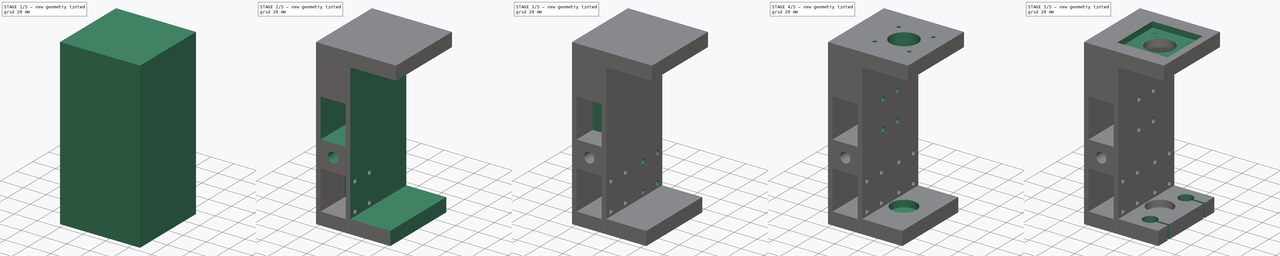
[diagram: build sequence overview — one tinted view per stage of 5, left to right]
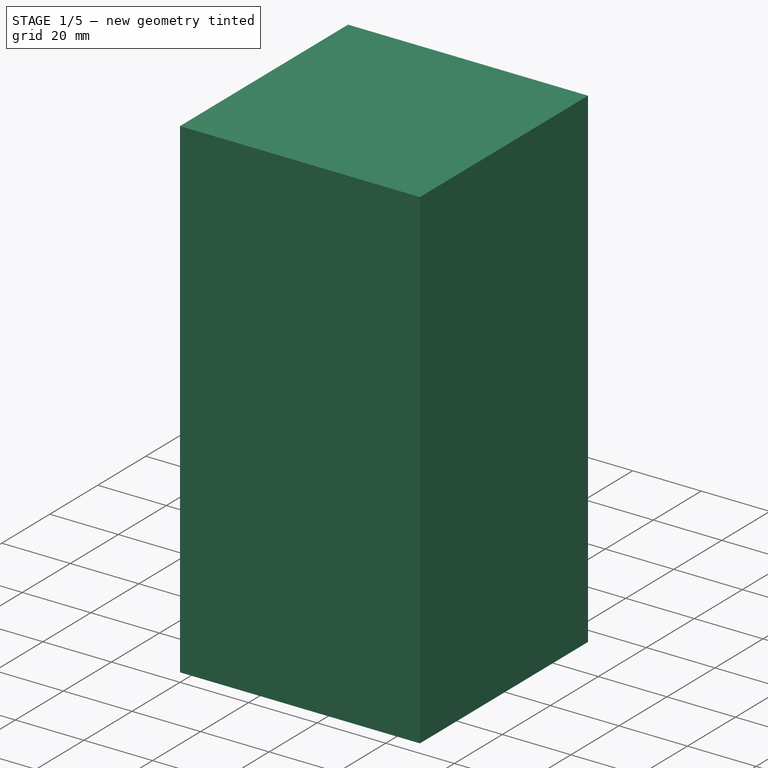
[diagram: stage 1 of 5 — iso view after this stage's code; geometry added in this stage tinted green]
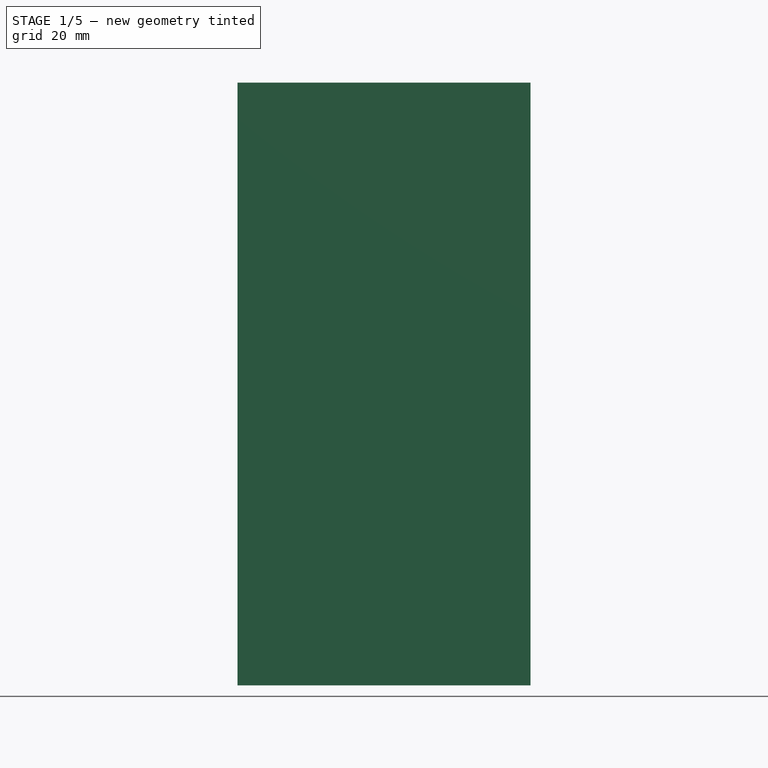
[diagram: stage 1 of 5 — front view after this stage's code; geometry added in this stage tinted green]
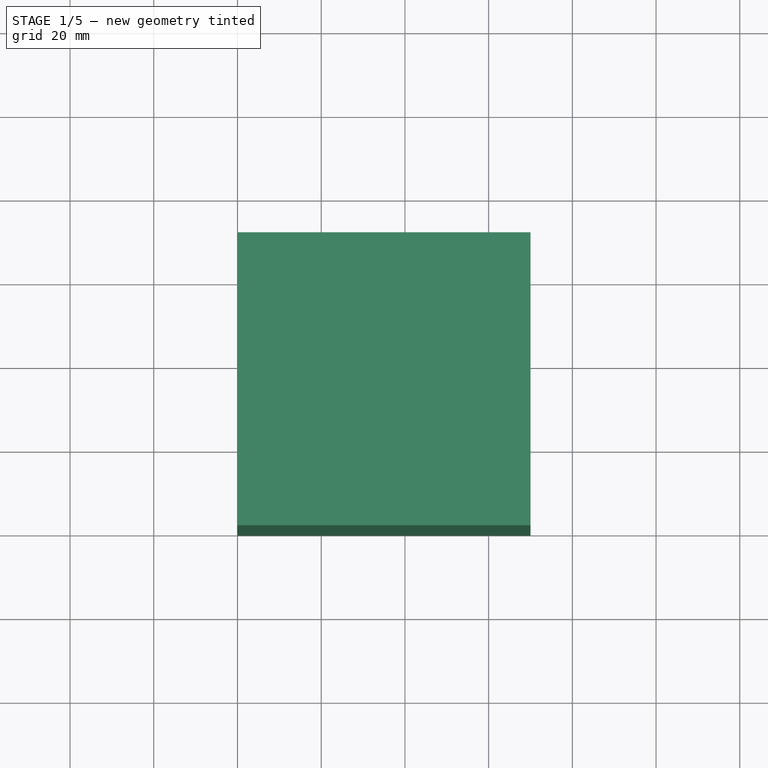
[diagram: stage 1 of 5 — top view after this stage's code; geometry added in this stage tinted green]
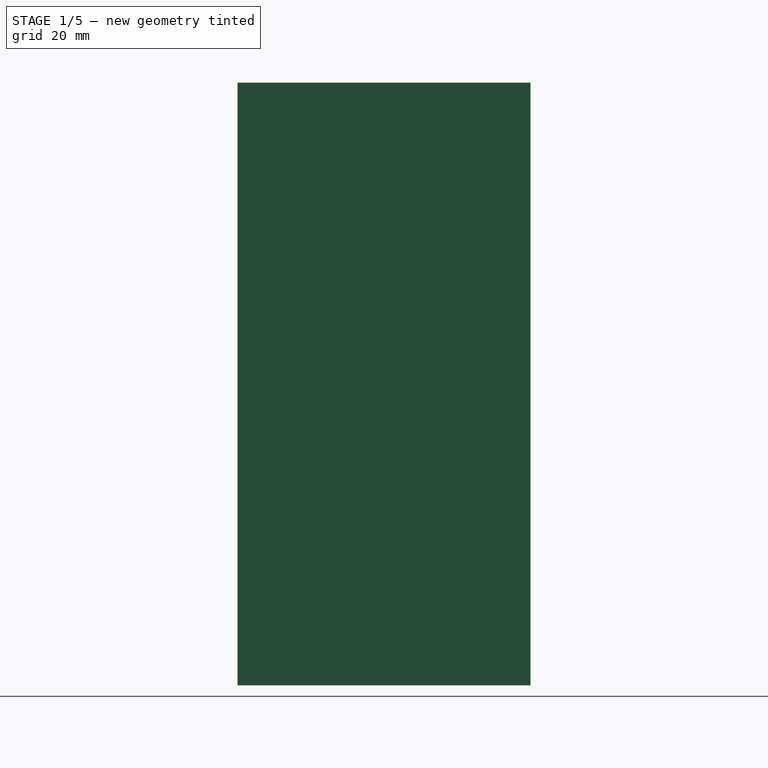
[diagram: stage 1 of 5 — right view after this stage's code; geometry added in this stage tinted green]
FCSTD DOCUMENT  (FreeCAD 0.16R6712 (Git))
Label: c_V1
License: All rights reserved
LicenseURL: http://en.wikipedia.org/wiki/All_rights_reserved
objects: Sketcher::SketchObject×10, PartDesign::Pocket×7, Part::Box×4, PartDesign::Pad×3, Part::Cut×3
note: 37 computed .brp shape members not serialized (recipe doc carries the construction recipe); baked Part::Feature solids carry a one-line shape summary decoded from their .brp

FEATURE [Part::Box] Box  label="Cubo"
  Height = 144
  Length = 70
  Width = 70
FEATURE [Part::Box] Box001  label="hueco_rodamientos_inferior"
  Height = 34
  Length = 22
  Placement = pos=(4,0,11) rot=(0,0,1;0rad)
  Width = 30
FEATURE [Sketcher::SketchObject] Sketch002
  ExternalGeometry = -> [Box001]
  Placement = pos=(26,0,11) rot=(0.57735,0.57735,0.57735;2.0944rad)
  Support = -> Box001 [Face2]
  sketch-geometry (4):
    g0: Circle CenterX=6 CenterY=29 CenterZ=0 NormalX=0 NormalY=0 NormalZ=1 Radius=2
    g1: Circle CenterX=6 CenterY=5 CenterZ=0 NormalX=0 NormalY=0 NormalZ=1 Radius=2
    g2: Circle CenterX=24 CenterY=29 CenterZ=0 NormalX=0 NormalY=0 NormalZ=1 Radius=2
    g3: Circle CenterX=24 CenterY=5 CenterZ=0 NormalX=0 NormalY=0 NormalZ=1 Radius=2
  constraints (12):
    c: DistanceY(g1,g0) = 24
    c: DistanceY(g3,g2) = 24
    c: DistanceX(g0,g2) = 18
    c: Radius(g0) = 2
    c: Equal(g0,g2)
    c: Equal(g2,g3)
    c: Equal(g3,g1)
    c: DistanceX(g1,g0) = 0
    c: DistanceX(g2,g3) = 0
    c: DistanceY(g0,g2) = 0
    c: DistanceX(g-1,g1) = 6
    c: DistanceY(g-1,g1) = 5
FEATURE [PartDesign::Pad] Pad  label="rodamiento1"
  Length = 10
  Length2 = 100
  Placement = pos=(4,0,11) rot=(0,0,1;0rad)
  Sketch = -> Sketch002
  Type = 0
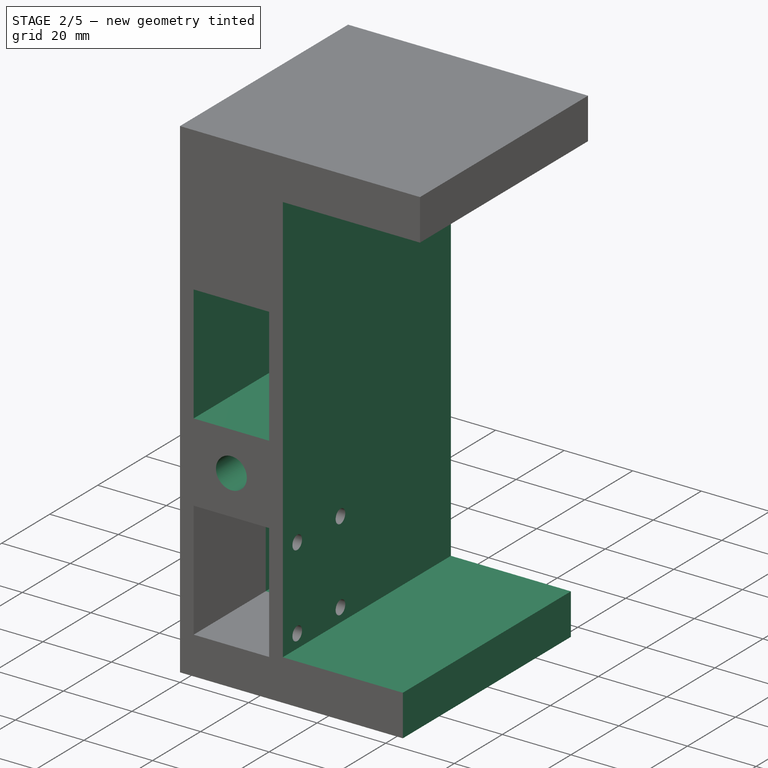
[diagram: stage 2 of 5 — iso view after this stage's code; geometry added in this stage tinted green]
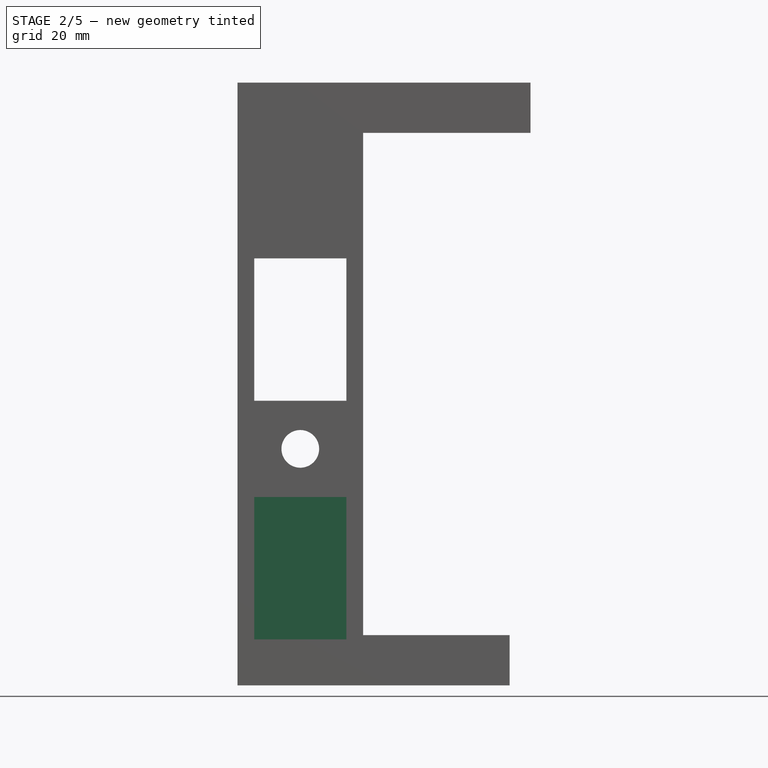
[diagram: stage 2 of 5 — front view after this stage's code; geometry added in this stage tinted green]
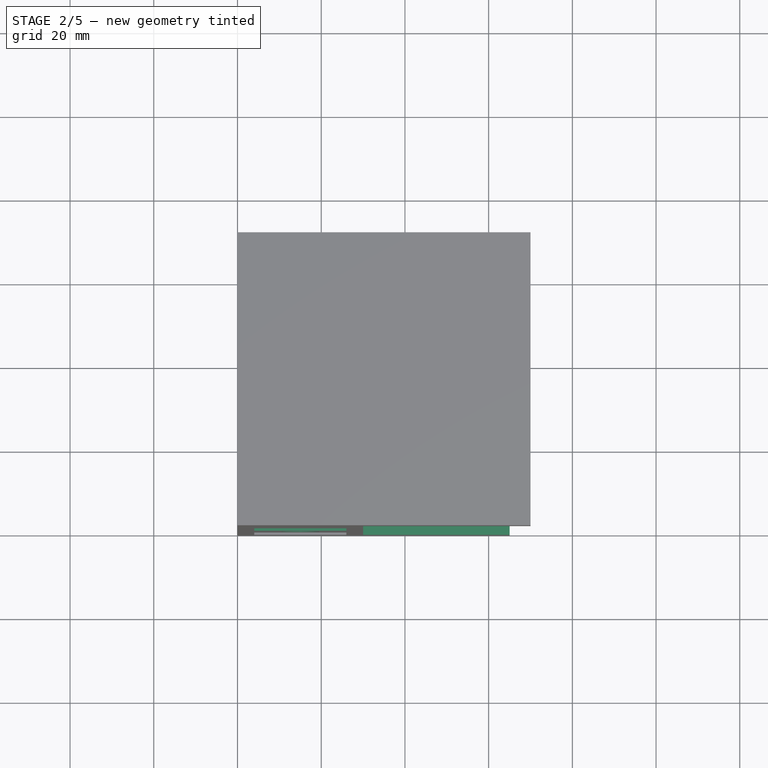
[diagram: stage 2 of 5 — top view after this stage's code; geometry added in this stage tinted green]
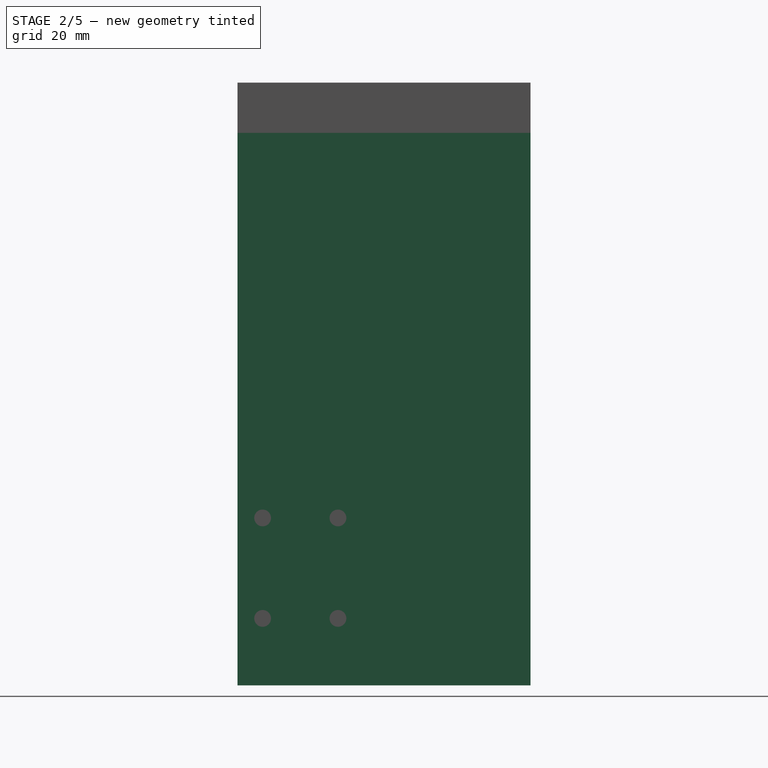
[diagram: stage 2 of 5 — right view after this stage's code; geometry added in this stage tinted green]
FEATURE [Sketcher::SketchObject] Sketch
  ExternalGeometry = -> [Box]
  Placement = pos=(0,0,0) rot=(1,0,0;1.5708rad)
  Support = -> Box [Face3]
  sketch-geometry (6):
    g0: LineSegment StartX=30 StartY=132 StartZ=0 EndX=72 EndY=132 EndZ=0
    g1: LineSegment StartX=72 StartY=132 StartZ=0 EndX=72 EndY=-8 EndZ=0
    g2: LineSegment StartX=65 StartY=12 StartZ=0 EndX=30 EndY=12 EndZ=0
    g3: LineSegment StartX=30 StartY=12 StartZ=0 EndX=30 EndY=132 EndZ=0
    g4: LineSegment StartX=65 StartY=12 StartZ=0 EndX=65 EndY=-8 EndZ=0
    g5: LineSegment StartX=65 StartY=-8 StartZ=0 EndX=72 EndY=-8 EndZ=0
  constraints (18):
    c: Coincident(g0,g1)
    c: Coincident(g2,g3)
    c: Coincident(g3,g0)
    c: Horizontal(g0)
    c: Horizontal(g2)
    c: Vertical(g1)
    c: Vertical(g3)
    c: DistanceY(g-1,g2) = 12
    c: DistanceY(g0,g-3) = 12
    c: DistanceX(g-1,g2) = 30
    c: Coincident(g4,g5)
    c: Horizontal(g5)
    c: Vertical(g4)
    c: Coincident(g2,g4)
    c: DistanceX(g2,g2) = 35
    c: DistanceX(g0,g0) = 42
    c: DistanceY(g4,g4) = 20
    c: Coincident(g1,g5)
FEATURE [PartDesign::Pocket] Pocket
  Length = 5
  Sketch = -> Sketch
  Type = 1
FEATURE [Sketcher::SketchObject] Sketch001
  ExternalGeometry = -> [Pocket]
  Placement = pos=(0,0,0) rot=(1,0,0;1.5708rad)
  Support = -> Pocket [Face2]
  sketch-geometry (11):
    g0: Circle CenterX=15 CenterY=28 CenterZ=0 NormalX=0 NormalY=0 NormalZ=1 Radius=4.1
    g1: Circle CenterX=15 CenterY=85 CenterZ=0 NormalX=0 NormalY=0 NormalZ=1 Radius=4.1
    g2: Circle CenterX=15 CenterY=56.5 CenterZ=0 NormalX=0 NormalY=0 NormalZ=1 Radius=4.5
    g3: LineSegment StartX=4 StartY=102 StartZ=0 EndX=26 EndY=102 EndZ=0
    g4: LineSegment StartX=26 StartY=102 StartZ=0 EndX=26 EndY=68 EndZ=0
    g5: LineSegment StartX=26 StartY=68 StartZ=0 EndX=4 EndY=68 EndZ=0
    g6: LineSegment StartX=4 StartY=68 StartZ=0 EndX=4 EndY=102 EndZ=0
    g7: LineSegment StartX=4 StartY=45 StartZ=0 EndX=26 EndY=45 EndZ=0
    g8: LineSegment StartX=26 StartY=45 StartZ=0 EndX=26 EndY=11 EndZ=0
    g9: LineSegment StartX=26 StartY=11 StartZ=0 EndX=4 EndY=11 EndZ=0
    g10: LineSegment StartX=4 StartY=11 StartZ=0 EndX=4 EndY=45 EndZ=0
  constraints (33):
    c: DistanceX(g0,g-3) = 15
    c: DistanceY(g-3,g0) = 16
    c: Radius(g0) = 4.1
    c: Radius(g1) = 4.1
    c: Radius(g2) = 4.5
    c: DistanceY(g0,g2) = 28.5
    c: DistanceX(g2,g0) = 0
    c: DistanceY(g2,g1) = 28.5
    c: DistanceX(g1,g0) = 0
    c: Coincident(g3,g4)
    c: Coincident(g4,g5)
    c: Coincident(g5,g6)
    c: Coincident(g6,g3)
    c: Horizontal(g3)
    c: Horizontal(g5)
    c: Vertical(g4)
    c: Vertical(g6)
    c: Coincident(g7,g8)
    c: Coincident(g8,g9)
    c: Coincident(g9,g10)
    c: Coincident(g10,g7)
    c: Horizontal(g7)
    c: Horizontal(g9)
    c: Vertical(g8)
    c: Vertical(g10)
    c: DistanceX(g3,g3) = 22
    c: DistanceY(g4,g4) = 34
    c: DistanceY(g1,g3) = 17
    c: DistanceX(g3,g1) = 11
    c: DistanceX(g7,g7) = 22
    c: DistanceY(g8,g8) = 34
    c: DistanceX(g7,g0) = 11
    c: DistanceY(g0,g7) = 17
FEATURE [PartDesign::Pocket] Pocket001
  Length = 5
  Sketch = -> Sketch001
  Type = 1
FEATURE [Part::Box] Box003  label="hueco_rodamientos_inferior001"
  Height = 34
  Length = 22
  Placement = pos=(4,40,11) rot=(0,0,1;0rad)
  Width = 30
FEATURE [Part::Cut] Cut
  Base = -> Pocket001
  Tool = -> Pad
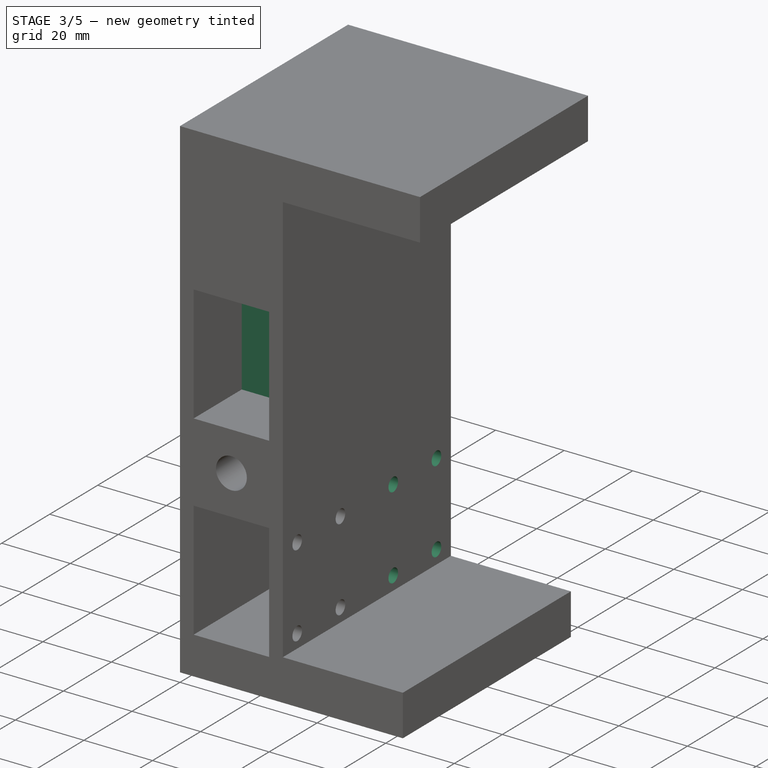
[diagram: stage 3 of 5 — iso view after this stage's code; geometry added in this stage tinted green]
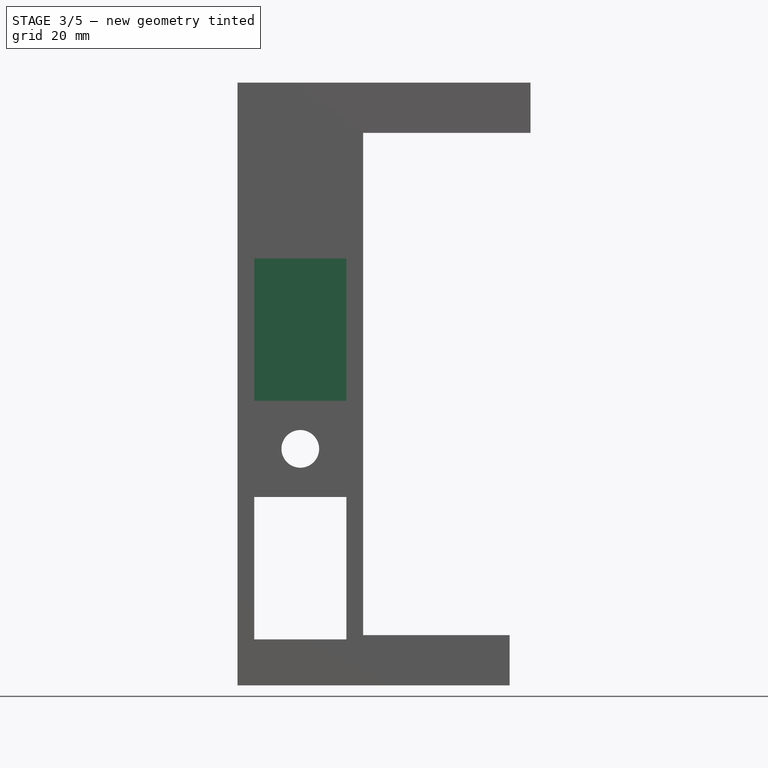
[diagram: stage 3 of 5 — front view after this stage's code; geometry added in this stage tinted green]
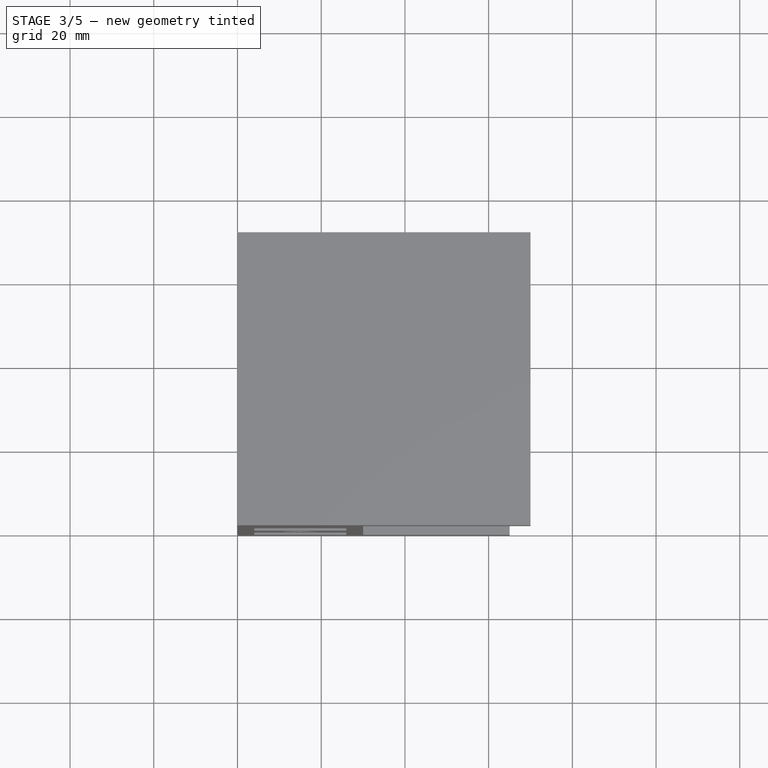
[diagram: stage 3 of 5 — top view after this stage's code; geometry added in this stage tinted green]
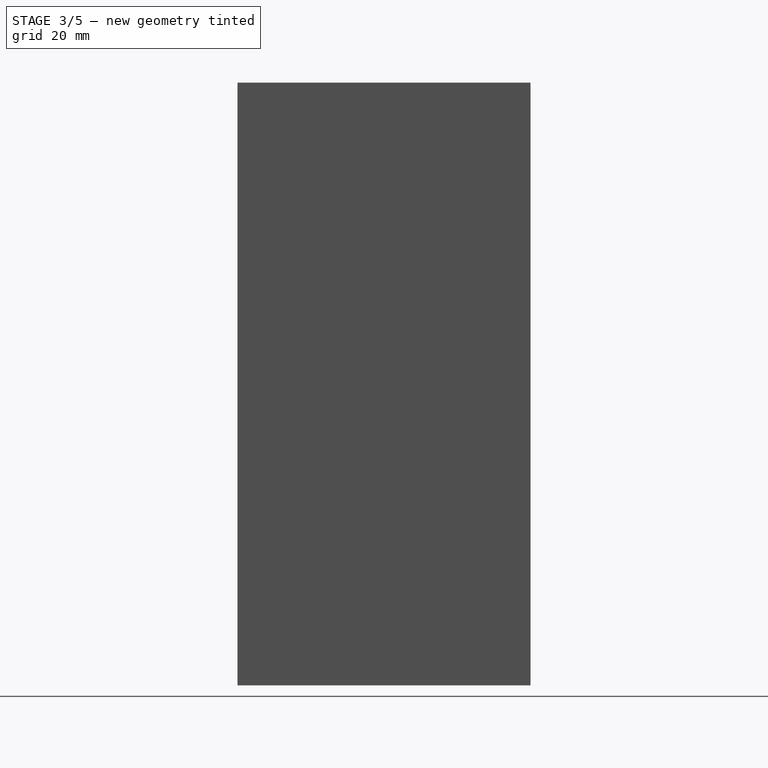
[diagram: stage 3 of 5 — right view after this stage's code; geometry added in this stage tinted green]
FEATURE [Sketcher::SketchObject] Sketch003
  ExternalGeometry = -> [Box003]
  Placement = pos=(26,40,11) rot=(0.57735,0.57735,0.57735;2.0944rad)
  Support = -> Box003 [Face2]
  sketch-geometry (4):
    g0: Circle CenterX=6 CenterY=29 CenterZ=0 NormalX=0 NormalY=0 NormalZ=1 Radius=2
    g1: Circle CenterX=6 CenterY=5 CenterZ=0 NormalX=0 NormalY=0 NormalZ=1 Radius=2
    g2: Circle CenterX=24 CenterY=29 CenterZ=0 NormalX=0 NormalY=0 NormalZ=1 Radius=2
    g3: Circle CenterX=24 CenterY=5 CenterZ=0 NormalX=0 NormalY=0 NormalZ=1 Radius=2
  constraints (12):
    c: DistanceY(g1,g0) = 24
    c: DistanceY(g3,g2) = 24
    c: DistanceX(g0,g2) = 18
    c: Radius(g0) = 2
    c: Equal(g0,g2)
    c: Equal(g2,g3)
    c: Equal(g3,g1)
    c: DistanceX(g1,g0) = 0
    c: DistanceX(g2,g3) = 0
    c: DistanceY(g0,g2) = 0
    c: DistanceX(g-1,g1) = 6
    c: DistanceY(g-1,g1) = 5
FEATURE [PartDesign::Pad] Pad001  label="rodamiento002"
  Length = 10
  Length2 = 100
  Placement = pos=(4,40,11) rot=(0,0,1;0rad)
  Sketch = -> Sketch003
  Type = 0
FEATURE [Part::Box] Box004  label="hueco_rodamientos_inferior002"
  Height = 34
  Length = 22
  Placement = pos=(4,20,68) rot=(0,0,1;0rad)
  Width = 30
FEATURE [Part::Cut] Cut001
  Base = -> Cut
  Tool = -> Pad001
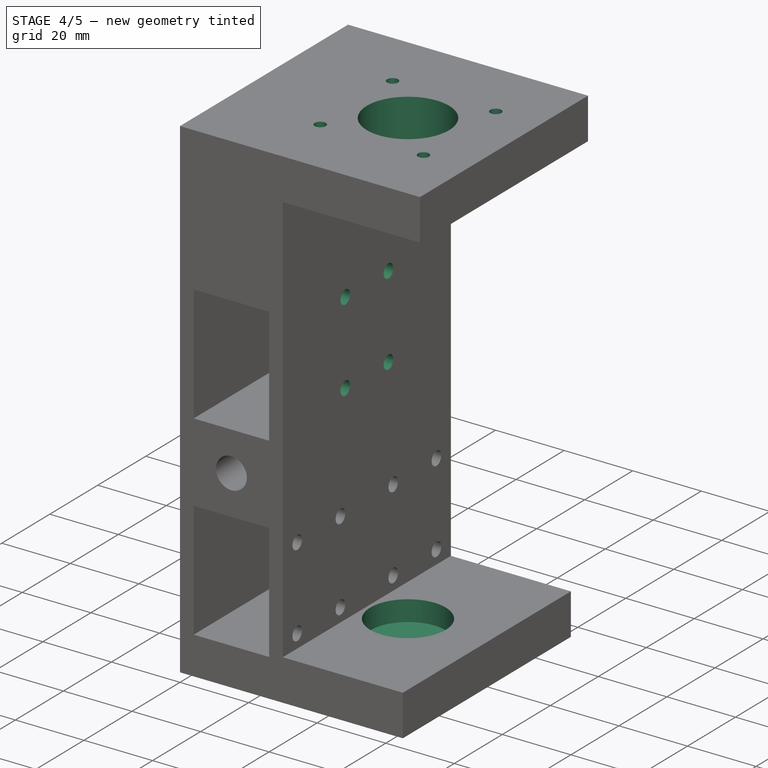
[diagram: stage 4 of 5 — iso view after this stage's code; geometry added in this stage tinted green]
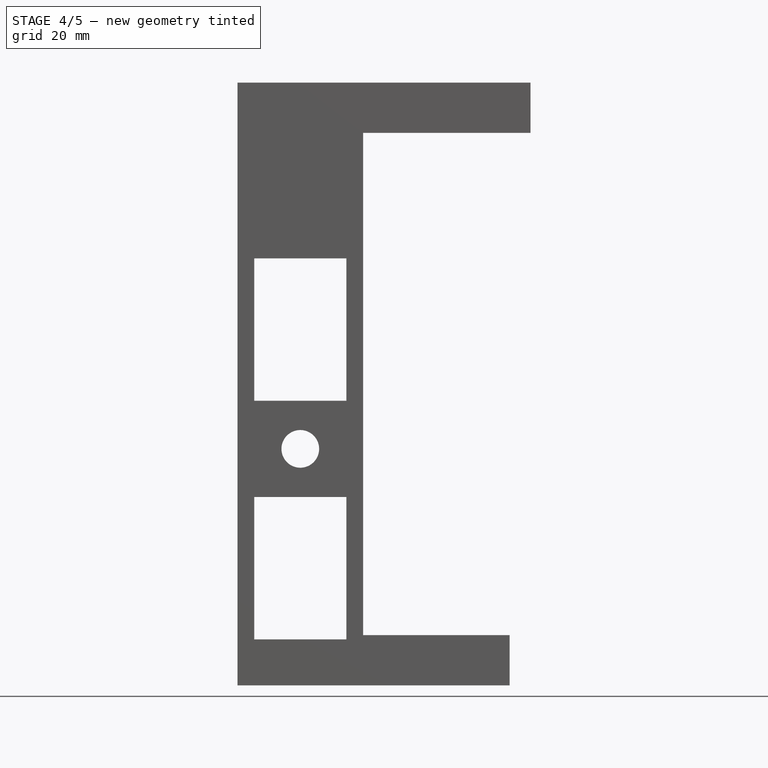
[diagram: stage 4 of 5 — front view after this stage's code; geometry added in this stage tinted green]
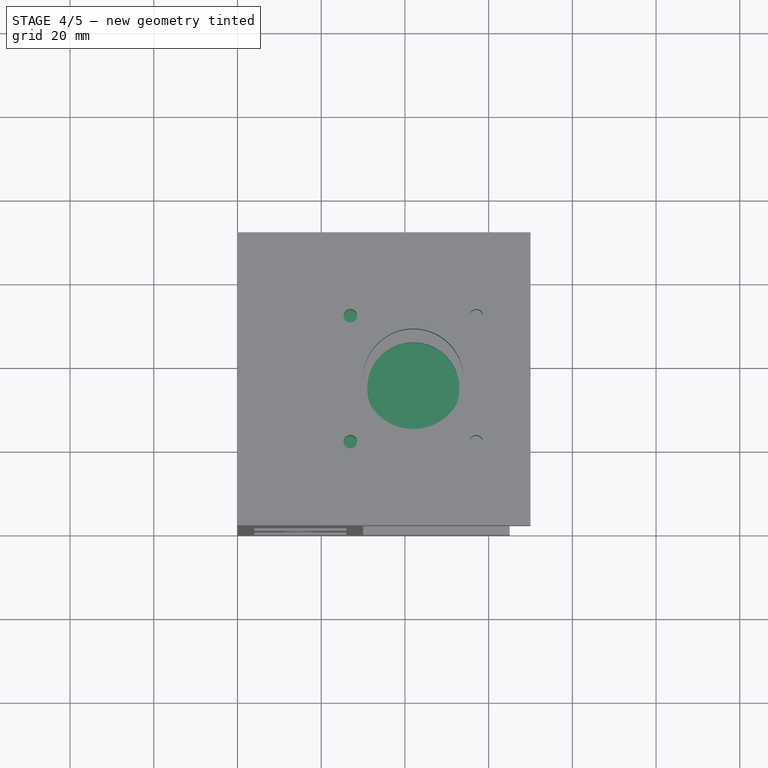
[diagram: stage 4 of 5 — top view after this stage's code; geometry added in this stage tinted green]
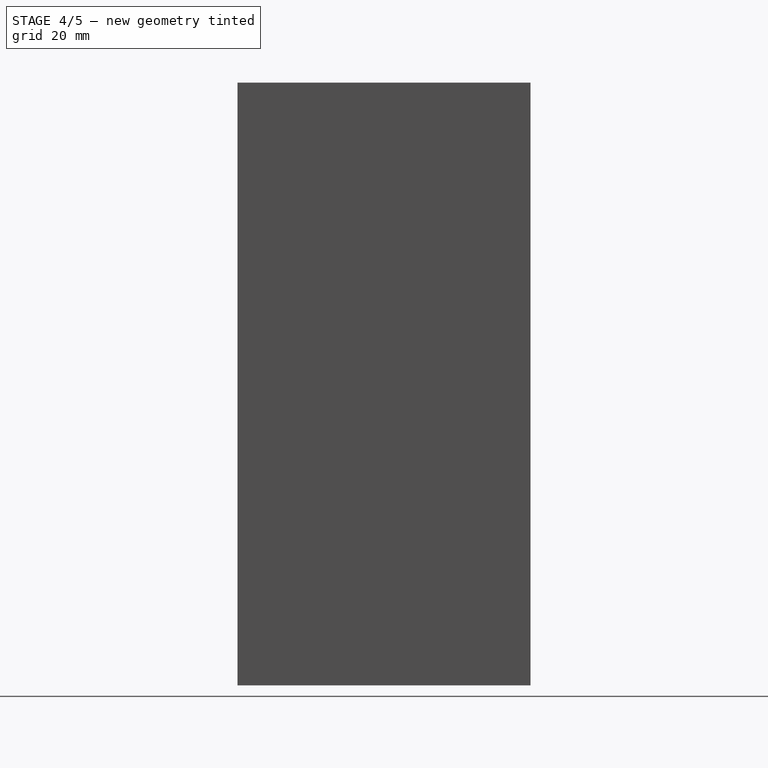
[diagram: stage 4 of 5 — right view after this stage's code; geometry added in this stage tinted green]
FEATURE [Sketcher::SketchObject] Sketch004
  ExternalGeometry = -> [Box004]
  Placement = pos=(26,20,68) rot=(0.57735,0.57735,0.57735;2.0944rad)
  Support = -> Box004 [Face2]
  sketch-geometry (4):
    g0: Circle CenterX=6 CenterY=29 CenterZ=0 NormalX=0 NormalY=0 NormalZ=1 Radius=2
    g1: Circle CenterX=6 CenterY=5 CenterZ=0 NormalX=0 NormalY=0 NormalZ=1 Radius=2
    g2: Circle CenterX=24 CenterY=29 CenterZ=0 NormalX=0 NormalY=0 NormalZ=1 Radius=2
    g3: Circle CenterX=24 CenterY=5 CenterZ=0 NormalX=0 NormalY=0 NormalZ=1 Radius=2
  constraints (12):
    c: DistanceY(g1,g0) = 24
    c: DistanceY(g3,g2) = 24
    c: DistanceX(g0,g2) = 18
    c: Radius(g0) = 2
    c: Equal(g0,g2)
    c: Equal(g2,g3)
    c: Equal(g3,g1)
    c: DistanceX(g1,g0) = 0
    c: DistanceX(g2,g3) = 0
    c: DistanceY(g0,g2) = 0
    c: DistanceX(g-1,g1) = 6
    c: DistanceY(g-1,g1) = 5
FEATURE [PartDesign::Pad] Pad002  label="rodamiento003"
  Length = 10
  Length2 = 100
  Placement = pos=(4,20,68) rot=(0,0,1;0rad)
  Sketch = -> Sketch004
  Type = 0
FEATURE [Part::Cut] Cut002
  Base = -> Cut001
  Tool = -> Pad002
FEATURE [Sketcher::SketchObject] Sketch005
  Placement = pos=(0,0,12) rot=(0,0,1;0rad)
  Support = -> Cut002 [Face7]
  sketch-geometry (1):
    g0: Circle CenterX=42 CenterY=35 CenterZ=0 NormalX=0 NormalY=0 NormalZ=1 Radius=11
  constraints (3):
    c: Radius(g0) = 11
    c: DistanceY(g-1,g0) = 35
    c: DistanceX(g-1,g0) = 42
FEATURE [PartDesign::Pocket] Pocket002
  Length = 6
  Sketch = -> Sketch005
  Type = 0
FEATURE [Sketcher::SketchObject] Sketch006
  Placement = pos=(0,0,144) rot=(0,0,1;0rad)
  Support = -> Pocket002 [Face3]
  sketch-geometry (5):
    g0: Circle CenterX=42 CenterY=35 CenterZ=0 NormalX=0 NormalY=0 NormalZ=1 Radius=12
    g1: Circle CenterX=26.95 CenterY=50.05 CenterZ=0 NormalX=0 NormalY=0 NormalZ=1 Radius=1.6
    g2: Circle CenterX=57.05 CenterY=19.95 CenterZ=0 NormalX=0 NormalY=0 NormalZ=1 Radius=1.6
    g3: Circle CenterX=57.05 CenterY=50.05 CenterZ=0 NormalX=0 NormalY=0 NormalZ=1 Radius=1.6
    g4: Circle CenterX=26.95 CenterY=19.95 CenterZ=0 NormalX=0 NormalY=0 NormalZ=1 Radius=1.6
  constraints (15):
    c: DistanceX(g-1,g0) = 42
    c: DistanceY(g-1,g0) = 35
    c: Radius(g0) = 12
    c: Radius(g1) = 1.6
    c: DistanceX(g1,g0) = 15.05
    c: DistanceY(g0,g1) = 15.05
    c: Radius(g2) = 1.6
    c: Radius(g3) = 1.6
    c: Radius(g4) = 1.6
    c: DistanceY(g4,g0) = 15.05
    c: DistanceX(g4,g0) = 15.05
    c: DistanceX(g0,g2) = 15.05
    c: DistanceY(g2,g0) = 15.05
    c: DistanceX(g0,g3) = 15.05
    c: DistanceY(g0,g3) = 15.05
FEATURE [PartDesign::Pocket] Pocket003
  Length = 12
  Sketch = -> Sketch006
  Type = 0
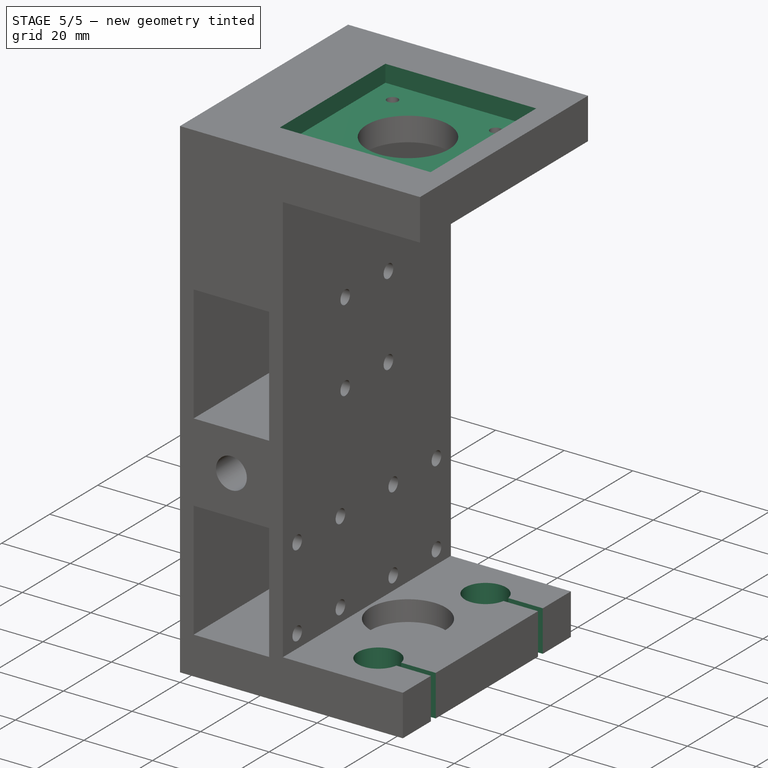
[diagram: stage 5 of 5 — iso view after this stage's code; geometry added in this stage tinted green]
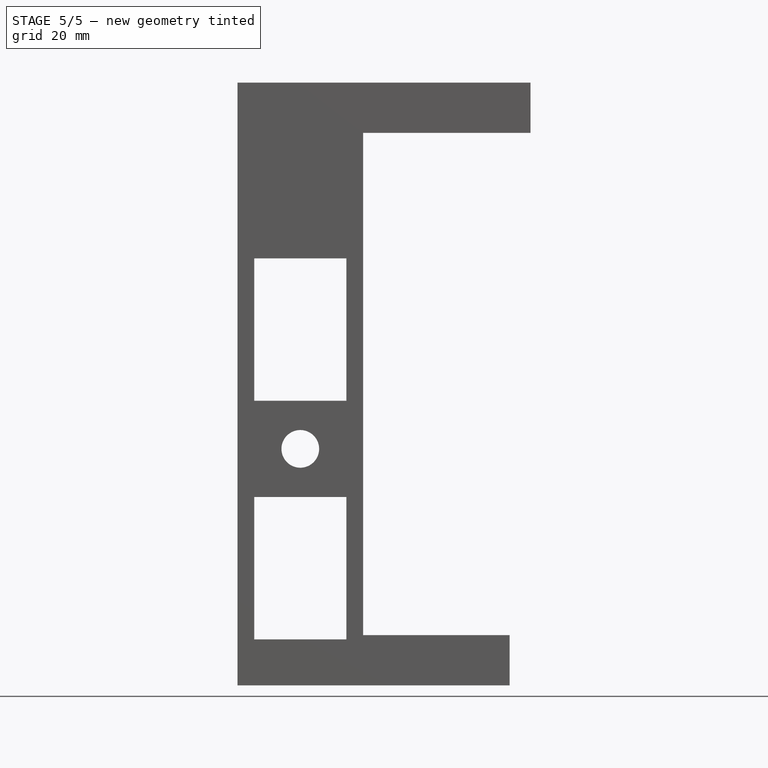
[diagram: stage 5 of 5 — front view after this stage's code; geometry added in this stage tinted green]
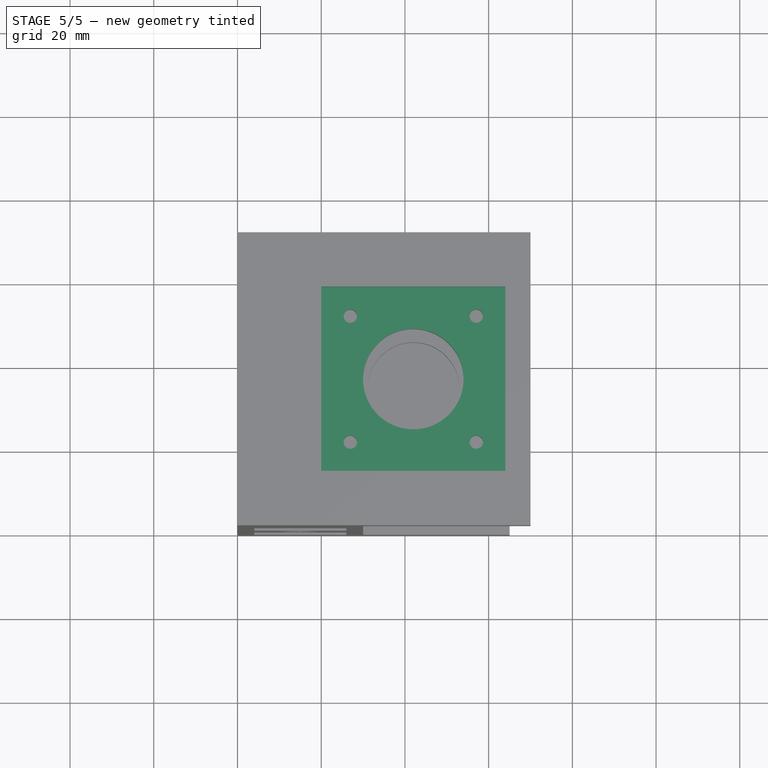
[diagram: stage 5 of 5 — top view after this stage's code; geometry added in this stage tinted green]
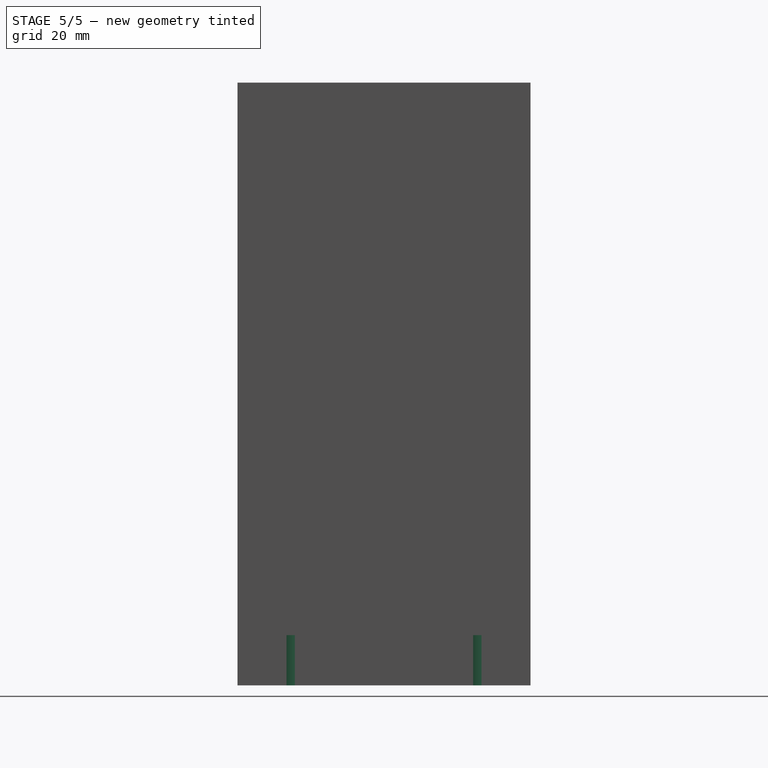
[diagram: stage 5 of 5 — right view after this stage's code; geometry added in this stage tinted green]
FEATURE [Sketcher::SketchObject] Sketch007
  ExternalGeometry = -> [Pocket003]
  Placement = pos=(0,0,144) rot=(0,0,1;0rad)
  Support = -> Pocket003 [Face3]
  sketch-geometry (4):
    g0: LineSegment StartX=20 StartY=57 StartZ=0 EndX=64 EndY=57 EndZ=0
    g1: LineSegment StartX=64 StartY=57 StartZ=0 EndX=64 EndY=13 EndZ=0
    g2: LineSegment StartX=64 StartY=13 StartZ=0 EndX=20 EndY=13 EndZ=0
    g3: LineSegment StartX=20 StartY=13 StartZ=0 EndX=20 EndY=57 EndZ=0
  constraints (12):
    c: Coincident(g0,g1)
    c: Coincident(g1,g2)
    c: Coincident(g2,g3)
    c: Coincident(g3,g0)
    c: Horizontal(g0)
    c: Horizontal(g2)
    c: Vertical(g1)
    c: Vertical(g3)
    c: Equal(g0,g3)
    c: DistanceX(g0,g0) = 44
    c: DistanceX(g0,g-3) = 22
    c: DistanceY(g-3,g0) = 22
FEATURE [PartDesign::Pocket] Pocket004
  Length = 5
  Sketch = -> Sketch007
  Type = 0
FEATURE [Sketcher::SketchObject] Sketch008
  ExternalGeometry = -> [Pocket004]
  Placement = pos=(0,0,0) rot=(1,0,0;3.14159rad)
  Support = -> Pocket004 [Face5]
  sketch-geometry (2):
    g0: Circle CenterX=49 CenterY=-12.7 CenterZ=0 NormalX=0 NormalY=0 NormalZ=1 Radius=6
    g1: Circle CenterX=49 CenterY=-57.3 CenterZ=0 NormalX=0 NormalY=0 NormalZ=1 Radius=6
  constraints (6):
    c: DistanceX(g0,g-3) = 16
    c: DistanceY(g0,g-3) = 12.7
    c: Radius(g0) = 6
    c: Radius(g1) = 6
    c: DistanceY(g-3,g1) = 12.7
    c: DistanceX(g1,g-3) = 16
FEATURE [PartDesign::Pocket] Pocket005
  Length = 136
  Sketch = -> Sketch008
  Type = 0
FEATURE [Sketcher::SketchObject] Sketch009
  ExternalGeometry = -> [Pocket005]
  Placement = pos=(0,0,0) rot=(1,0,0;3.14159rad)
  Support = -> Pocket005 [Face5]
  sketch-geometry (8):
    g0: LineSegment StartX=54.5508 StartY=-11.7 StartZ=0 EndX=65 EndY=-11.7 EndZ=0
    g1: LineSegment StartX=65 StartY=-11.7 StartZ=0 EndX=65 EndY=-13.7 EndZ=0
    g2: LineSegment StartX=65 StartY=-13.7 StartZ=0 EndX=54.5508 EndY=-13.7 EndZ=0
    g3: LineSegment StartX=54.5698 StartY=-58.3 StartZ=0 EndX=65 EndY=-58.3 EndZ=0
    g4: LineSegment StartX=65 StartY=-58.3 StartZ=0 EndX=65 EndY=-56.3 EndZ=0
    g5: LineSegment StartX=65 StartY=-56.3 StartZ=0 EndX=54.5698 EndY=-56.3 EndZ=0
    g6: ArcOfCircle CenterX=49 CenterY=-57.3 CenterZ=0 NormalX=0 NormalY=0 NormalZ=1 Radius=5.65882 StartAngle=6.10554 EndAngle=6.46083
    g7: ArcOfCircle CenterX=49 CenterY=-12.7 CenterZ=0 NormalX=0 NormalY=0 NormalZ=1 Radius=5.64015 StartAngle=6.10494 EndAngle=6.46143
  constraints (22):
    c: PointOnObject(g0,g-3)
    c: Horizontal(g0)
    c: Coincident(g0,g1)
    c: PointOnObject(g1,g-3)
    c: Coincident(g1,g2)
    c: Horizontal(g2)
    c: DistanceY(g1,g0) = 2
    c: DistanceY(g-4,g0) = 1
    c: Horizontal(g3)
    c: Coincident(g3,g4)
    c: Coincident(g4,g5)
    c: Horizontal(g5)
    c: DistanceY(g-5,g5) = 1
    c: DistanceY(g3,g4) = 2
    c: PointOnObject(g4,g-3)
    c: PointOnObject(g3,g-3)
    c: Coincident(g6,g-5)
    c: Coincident(g6,g5)
    c: Coincident(g6,g3)
    c: Coincident(g7,g-4)
    c: Coincident(g7,g2)
    c: Coincident(g7,g0)
FEATURE [PartDesign::Pocket] Pocket006
  Length = 12
  Sketch = -> Sketch009
  Type = 0
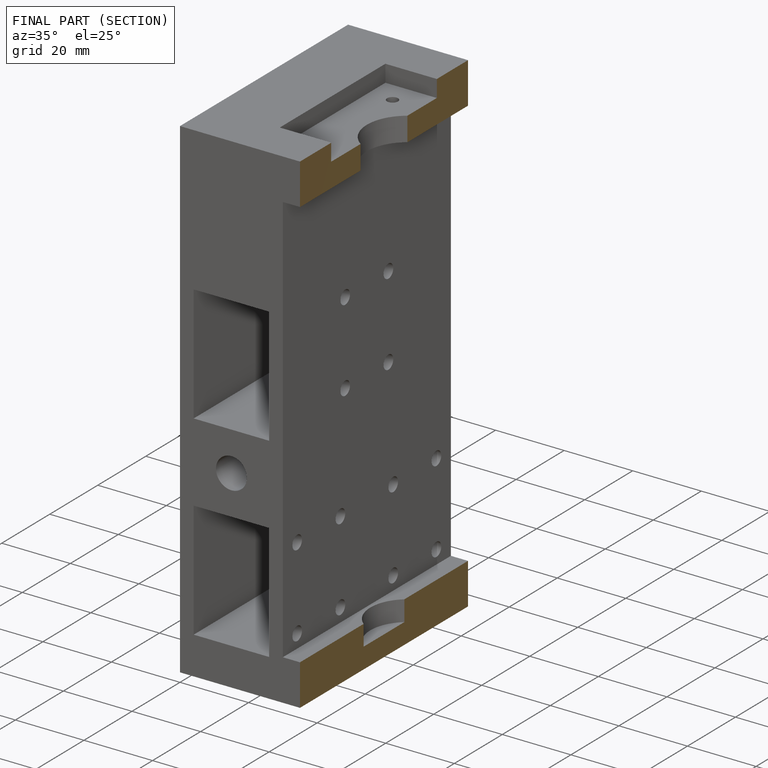
[diagram: finished part — half-section view (interior)]
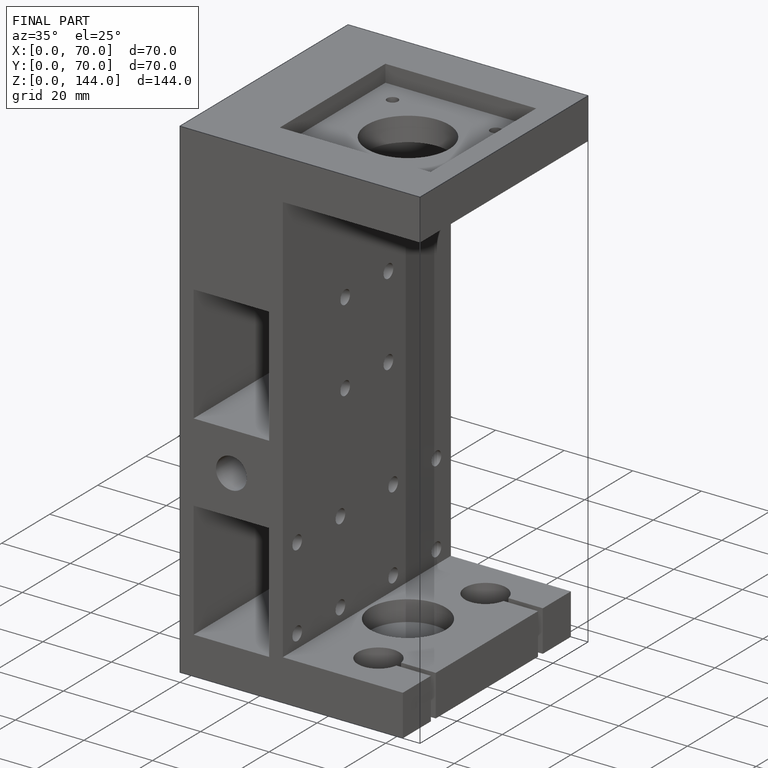
[diagram: finished part — iso view with bounding-box wireframe]
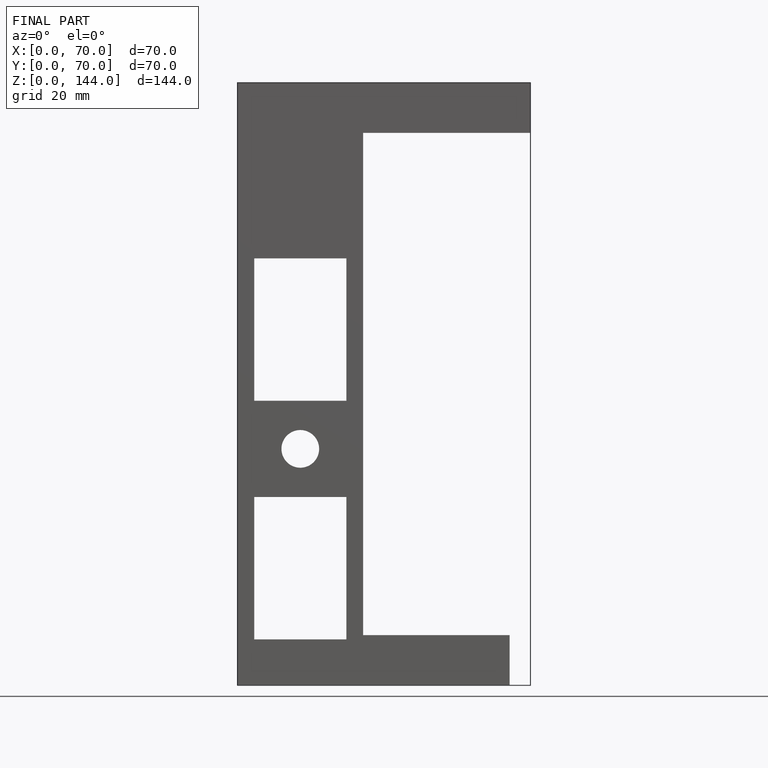
[diagram: finished part — front view with bounding-box wireframe]
